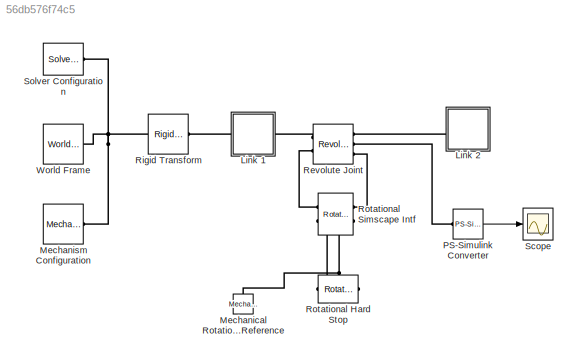
MODEL slx_56db576f74c5
KIND model
CONFIG PostLoadFcn = warning off sm:compiler:topologyAnalysis:DanglingBlock\n
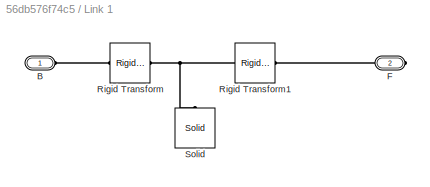
BLOCK [SubSystem] Link 1
  FunctionWithSeparateData = off
  MaskHideContents = off
  MinAlgLoopOccurrences = off
  Opaque = off
  Ports = [0, 0, 0, 0, 0, 1, 1]
  PropExecContextOutsideSubsystem = off
  RTWSystemCode = Auto
  RequestExecContextInheritance = off
BLOCK [PMIOPort] Link 1/B
  Port = 1
  Side = Left
BLOCK [PMIOPort] Link 1/F
  Port = 2
  Side = Right
BLOCK [Reference] Link 1/Rigid Transform  REF=sm_lib/Frames and
 Transforms/Rigid 
Transform
  BaseAlignAxisA = +Y
  BaseAlignAxisB = +Z
  BlockFunction = simmechanics.library.frames_transforms.rigid_transform
  ClassName = RigidTransform
  FollAlignAxisA = +X
  FollAlignAxisB = +Y
  Ports = [0, 0, 0, 0, 0, 1, 1]
  RotationAngle = 0
  RotationAngleUnits = deg
  RotationArbitraryAxis = [0 0 1]
  RotationMethod = None
  RotationStandardAxis = +X
  SourceBlock = sm_lib/Frames and\n Transforms/Rigid \nTransform
  SourceType = Rigid Transform
  TranslationCartesianOffset = [0 0 0]
  TranslationLengthUnit = m
  TranslationMethod = StandardAxis
  TranslationROffset = 0
  TranslationROffsetUnits = m
  TranslationStandardAxis = +X
  TranslationStandardOffset = 0.5
  TranslationThetaOffset = 0
  TranslationThetaOffsetUnits = deg
  TranslationZOffset = 0
  TranslationZOffsetUnits = m
BLOCK [Reference] Link 1/Rigid Transform1  REF=sm_lib/Frames and
 Transforms/Rigid 
Transform
  BaseAlignAxisA = +Y
  BaseAlignAxisB = +Z
  BlockFunction = simmechanics.library.frames_transforms.rigid_transform
  ClassName = RigidTransform
  FollAlignAxisA = +X
  FollAlignAxisB = +Y
  Ports = [0, 0, 0, 0, 0, 1, 1]
  RotationAngle = 0
  RotationAngleUnits = deg
  RotationArbitraryAxis = [0 0 1]
  RotationMethod = None
  RotationStandardAxis = +X
  SourceBlock = sm_lib/Frames and\n Transforms/Rigid \nTransform
  SourceType = Rigid Transform
  TranslationCartesianOffset = [0 0 0]
  TranslationLengthUnit = m
  TranslationMethod = StandardAxis
  TranslationROffset = 0
  TranslationROffsetUnits = m
  TranslationStandardAxis = +X
  TranslationStandardOffset = 0.5
  TranslationThetaOffset = 0
  TranslationThetaOffsetUnits = deg
  TranslationZOffset = 0
  TranslationZOffsetUnits = m
BLOCK [Reference] Link 1/Solid  REF=sm_lib/Body Elements/Solid
  BlockFunction = simmechanics.library.body_elements.solid
  BrickDimensionUnits = m
  BrickDimensions = [1 0.1 0.1]
  CenterOfMass = [0 0 0]
  CenterOfMassUnits = m
  ClassName = Solid
  CylinderLength = 1
  CylinderLengthUnits = m
  CylinderRadius = 1
  CylinderRadiusUnits = m
  Density = 1000
  DensityBased = on
  DensityUnits = kg/(m^3)
  EllipsoidRadii = [1 1 1]
  EllipsoidRadiiUnits = m
  ExtGeomFileUnits = m
  ExtrusionCrossSection = [1 1; -1 1; -1 -1; 1 -1]
  ExtrusionCrossSectionUnits = m
  ExtrusionLength = 1
  ExtrusionLengthUnits = m
  GeometryShape = Brick
  GraphicAmbientColor = [0.15 0.15 0.15 1.0]
  GraphicDiffuseColor = [0.5 0.5 0.5]
  GraphicEmissiveColor = [0.0 0.0 0.0 1.0]
  GraphicOpacity = 1.0
  GraphicShininess = 75
  GraphicSpecularColor = [0.5 0.5 0.5 1.0]
  GraphicType = FromGeometry
  GraphicVisPropType = SimpleVisualProperties
  InertiaType = CalculateFromGeometry
  MarkerShape = Sphere
  MarkerSize = 10
  MarkerSizeUnits = m
  Mass = 1
  MassUnits = kg
  MomentsOfInertia = [1 1 1]
  MomentsOfInertiaUnits = kg*m^2
  PolygonNumSides = 3
  PolygonOuterRadius = 1
  PolygonOuterRadiusUnits = m
  Ports = [0, 0, 0, 0, 0, 0, 1]
  ProductsOfInertia = [0 0 0]
  ProductsOfInertiaUnits = kg*m^2
  RectangleSize = [1 1]
  RectangleSizeUnits = m
  RevolutionAngle = 180
  RevolutionAngleUnits = deg
  RevolutionCrossSection = [1 1; 1 -1; 2 -1; 2 1]
  RevolutionCrossSectionUnits = m
  RevolutionExtent = Full
  SourceBlock = sm_lib/Body Elements/Solid
  SourceType = Solid
  SphereRadius = 1
  SphereRadiusUnits = m
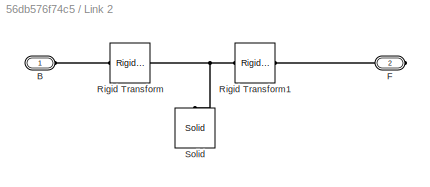
BLOCK [SubSystem] Link 2
  FunctionWithSeparateData = off
  MaskHideContents = off
  MinAlgLoopOccurrences = off
  Opaque = off
  Ports = [0, 0, 0, 0, 0, 1, 1]
  PropExecContextOutsideSubsystem = off
  RTWSystemCode = Auto
  RequestExecContextInheritance = off
BLOCK [PMIOPort] Link 2/B
  Port = 1
  Side = Left
BLOCK [PMIOPort] Link 2/F
  Port = 2
  Side = Right
BLOCK [Reference] Link 2/Rigid Transform  REF=sm_lib/Frames and
 Transforms/Rigid 
Transform
  BaseAlignAxisA = +Y
  BaseAlignAxisB = +Z
  BlockFunction = simmechanics.library.frames_transforms.rigid_transform
  ClassName = RigidTransform
  FollAlignAxisA = +X
  FollAlignAxisB = +Y
  Ports = [0, 0, 0, 0, 0, 1, 1]
  RotationAngle = 0
  RotationAngleUnits = deg
  RotationArbitraryAxis = [0 0 1]
  RotationMethod = None
  RotationStandardAxis = +X
  SourceBlock = sm_lib/Frames and\n Transforms/Rigid \nTransform
  SourceType = Rigid Transform
  TranslationCartesianOffset = [0 0 0]
  TranslationLengthUnit = m
  TranslationMethod = StandardAxis
  TranslationROffset = 0
  TranslationROffsetUnits = m
  TranslationStandardAxis = +X
  TranslationStandardOffset = 0.5
  TranslationThetaOffset = 0
  TranslationThetaOffsetUnits = deg
  TranslationZOffset = 0
  TranslationZOffsetUnits = m
BLOCK [Reference] Link 2/Rigid Transform1  REF=sm_lib/Frames and
 Transforms/Rigid 
Transform
  BaseAlignAxisA = +Y
  BaseAlignAxisB = +Z
  BlockFunction = simmechanics.library.frames_transforms.rigid_transform
  ClassName = RigidTransform
  FollAlignAxisA = +X
  FollAlignAxisB = +Y
  Ports = [0, 0, 0, 0, 0, 1, 1]
  RotationAngle = 0
  RotationAngleUnits = deg
  RotationArbitraryAxis = [0 0 1]
  RotationMethod = None
  RotationStandardAxis = +X
  SourceBlock = sm_lib/Frames and\n Transforms/Rigid \nTransform
  SourceType = Rigid Transform
  TranslationCartesianOffset = [0 0 0]
  TranslationLengthUnit = m
  TranslationMethod = StandardAxis
  TranslationROffset = 0
  TranslationROffsetUnits = m
  TranslationStandardAxis = +X
  TranslationStandardOffset = 0.5
  TranslationThetaOffset = 0
  TranslationThetaOffsetUnits = deg
  TranslationZOffset = 0
  TranslationZOffsetUnits = m
BLOCK [Reference] Link 2/Solid  REF=sm_lib/Body Elements/Solid
  BlockFunction = simmechanics.library.body_elements.solid
  BrickDimensionUnits = m
  BrickDimensions = [1 0.1 0.1]
  CenterOfMass = [0 0 0]
  CenterOfMassUnits = m
  ClassName = Solid
  CylinderLength = 1
  CylinderLengthUnits = m
  CylinderRadius = 1
  CylinderRadiusUnits = m
  Density = 1000
  DensityBased = on
  DensityUnits = kg/(m^3)
  EllipsoidRadii = [1 1 1]
  EllipsoidRadiiUnits = m
  ExtGeomFileUnits = m
  ExtrusionCrossSection = [1 1; -1 1; -1 -1; 1 -1]
  ExtrusionCrossSectionUnits = m
  ExtrusionLength = 1
  ExtrusionLengthUnits = m
  GeometryShape = Brick
  GraphicAmbientColor = [0.15 0.15 0.15 1.0]
  GraphicDiffuseColor = [0.8 0.2 0.0]
  GraphicEmissiveColor = [0.0 0.0 0.0 1.0]
  GraphicOpacity = 1.0
  GraphicShininess = 75
  GraphicSpecularColor = [0.5 0.5 0.5 1.0]
  GraphicType = FromGeometry
  GraphicVisPropType = SimpleVisualProperties
  InertiaType = CalculateFromGeometry
  MarkerShape = Sphere
  MarkerSize = 10
  MarkerSizeUnits = m
  Mass = 1
  MassUnits = kg
  MomentsOfInertia = [1 1 1]
  MomentsOfInertiaUnits = kg*m^2
  PolygonNumSides = 3
  PolygonOuterRadius = 1
  PolygonOuterRadiusUnits = m
  Ports = [0, 0, 0, 0, 0, 0, 1]
  ProductsOfInertia = [0 0 0]
  ProductsOfInertiaUnits = kg*m^2
  RectangleSize = [1 1]
  RectangleSizeUnits = m
  RevolutionAngle = 180
  RevolutionAngleUnits = deg
  RevolutionCrossSection = [1 1; 1 -1; 2 -1; 2 1]
  RevolutionCrossSectionUnits = m
  RevolutionExtent = Full
  SourceBlock = sm_lib/Body Elements/Solid
  SourceType = Solid
  SphereRadius = 1
  SphereRadiusUnits = m
BLOCK [Reference] Mechanical Rotational Reference  REF=fl_lib/Mechanical/Rotational Elements/Mechanical
Rotational Reference
  ClassName = reference
  ComponentPath = foundation.mechanical.rotational.reference
  ComponentVariantNames = reference
  ComponentVariants = foundation.mechanical.rotational.reference
  LocalVarDescs = |t
  LocalVarLogging = 0
  LocalVarNames = |t
  Ports = [0, 0, 0, 0, 0, 1]
  SchemaVersion = 1
  SourceBlock = fl_lib/Mechanical/Rotational Elements/Mechanical\nRotational Reference
  SourceFile = foundation.mechanical.rotational.reference
  SourceType = Mechanical\nRotational Reference
  t_Log = off
BLOCK [Reference] Mechanism Configuration  REF=sm_lib/Utilities/Mechanism 
Configuration
  AllowGravitySignal = off
  BlockFunction = simmechanics.library.utilities.mechanism_configuration
  ClassName = MechanismConfiguration
  GravityUnits = m/s^2
  GravityVector = [0 0 -9.81]
  LinearizationDelta = 0.001
  Ports = [0, 0, 0, 0, 0, 0, 1]
  SourceBlock = sm_lib/Utilities/Mechanism \nConfiguration
  SourceType = Mechanism Configuration
BLOCK [Reference] PS-Simulink Converter  REF=nesl_utility/PS-Simulink
Converter
  AffineConversion = off
  Frequencies = []
  LeftPortType = input
  PhysicalDomain = network_engine_domain
  Ports = [0, 1, 0, 0, 0, 1]
  PseudoPeriodic = off
  RightPortType = output
  SourceBlock = nesl_utility/PS-Simulink\nConverter
  SourceType = PS-Simulink\nConverter
  SubClassName = ps_output
  Unit = deg
BLOCK [Reference] Revolute Joint  REF=sm_lib/Joints/Revolute Joint
  ActuationMode = TorqueForceActuation
  BlockFunction = simmechanics.library.joints.revolute_joint
  ClassName = RevoluteJoint
  ConstraintWrenchDir = FollowerOnBase
  ConstraintWrenchFrame = BaseFrame
  DampingCoefficient = 0
  DampingCoefficientUnits = N*m/(deg/s)
  EquilibriumPosition = 0
  EquilibriumPositionUnits = deg
  Ports = [0, 0, 0, 0, 0, 2, 3]
  PositionTargetPriority = High
  PositionTargetSpecify = off
  PositionTargetValue = 0
  PositionTargetValueUnits = deg
  SenseAcceleration = off
  SenseConstraintForceX = off
  SenseConstraintForceY = off
  SenseConstraintForceZ = off
  SenseConstraintTorqueX = off
  SenseConstraintTorqueY = off
  SenseConstraintTorqueZ = off
  SensePosition = on
  SenseTorqueForce = off
  SenseVelocity = on
  SourceBlock = sm_lib/Joints/Revolute Joint
  SourceType = Revolute Joint
  SpringStiffness = 0
  SpringStiffnessUnits = N*m/deg
  VelocityTargetPriority = High
  VelocityTargetSpecify = off
  VelocityTargetValue = 0
  VelocityTargetValueUnits = deg/s
BLOCK [Reference] Rigid Transform  REF=sm_lib/Frames and
 Transforms/Rigid 
Transform
  BaseAlignAxisA = +Y
  BaseAlignAxisB = +Z
  BlockFunction = simmechanics.library.frames_transforms.rigid_transform
  ClassName = RigidTransform
  FollAlignAxisA = +X
  FollAlignAxisB = +Y
  Ports = [0, 0, 0, 0, 0, 1, 1]
  RotationAngle = 90
  RotationAngleUnits = deg
  RotationArbitraryAxis = [0 0 1]
  RotationMethod = StandardAxis
  RotationStandardAxis = +X
  SourceBlock = sm_lib/Frames and\n Transforms/Rigid \nTransform
  SourceType = Rigid Transform
  TranslationCartesianOffset = [0 0 0]
  TranslationLengthUnit = m
  TranslationMethod = StandardAxis
  TranslationROffset = 0
  TranslationROffsetUnits = m
  TranslationStandardAxis = +X
  TranslationStandardOffset = 0.5
  TranslationThetaOffset = 0
  TranslationThetaOffsetUnits = deg
  TranslationZOffset = 0
  TranslationZOffsetUnits = m
BLOCK [Reference] Rotational Hard Stop  REF=fl_lib/Mechanical/Rotational Elements/Rotational Hard Stop
  ClassName = hardstop
  ComponentPath = foundation.mechanical.rotational.hardstop
  ComponentVariantNames = hardstop
  ComponentVariants = foundation.mechanical.rotational.hardstop
  D_low = 1e2
  D_low_unit = N*m/(rad/s)
  D_up = 1e2
  D_up_unit = N*m/(rad/s)
  LocalVarDescs = |t|w|phi
  LocalVarLogging = [0 0 0]
  LocalVarNames = |t|w|phi
  Ports = [0, 0, 0, 0, 0, 1, 1]
  SchemaVersion = 1
  SourceBlock = fl_lib/Mechanical/Rotational Elements/Rotational Hard Stop
  SourceFile = foundation.mechanical.rotational.hardstop
  SourceType = Rotational Hard Stop
  initial_angle = 0
  initial_angle_unit = rad
  lower_bnd = -45
  lower_bnd_unit = deg
  phi_Log = off
  stiff_low = 1e6
  stiff_low_unit = N*m/rad
  stiff_up = 1e6
  stiff_up_unit = N*m/rad
  t_Log = off
  upper_bnd = 45
  upper_bnd_unit = deg
  w_Log = off
BLOCK [Reference] Rotational Simscape Intf  REF=MS2G_SS_Intf_Lib/Rotational
Simscape Intf
  Ports = [0, 0, 0, 0, 0, 2, 2]
  SourceBlock = MS2G_SS_Intf_Lib/Rotational\nSimscape Intf
  SourceType = SubSystem
BLOCK [Scope] Scope
  DataFormat = StructureWithTime
  Floating = off
  NumInputPorts = 1
  Ports = [1]
  SampleTime = 0
  ShowLegends = off
  TimeRange = 10
  YMax = 0
  YMin = -50
BLOCK [Reference] Solver Configuration  REF=nesl_utility/Solver
Configuration
  Accelerate = off
  DelaysMemoryBudget = 1024
  DoDC = off
  DoFixedCost = off
  EnableSwitchedLinearOptims = on
  FrequencyDomain = off
  Harmonics = []
  LeftPortType = input
  LinearAlgebra = Sparse
  LocalSolverChoice = NE_BACKWARD_EULER_ADVANCER
  LocalSolverSampleTime = .001
  MaxModeIter = 2
  MaxNonlinIter = 3
  PhysicalDomain = network_engine_domain
  Ports = [0, 0, 0, 0, 0, 0, 1]
  Profile = off
  ResidualTolerance = 1e-9
  RightPortType = generic
  SimulateNoise = off
  SourceBlock = nesl_utility/Solver\nConfiguration
  SourceType = Solver\nConfiguration
  SubClassName = solver
  Tones = []
  UseCCode = off
  UseLocalSampling = off
  UseLocalSolver = off
  UseNewInitialization = off
BLOCK [Reference] World Frame  REF=sm_lib/Frames and
 Transforms/World Frame
  BlockFunction = simmechanics.library.frames_transforms.world_frame
  ClassName = WorldFrame
  Ports = [0, 0, 0, 0, 0, 0, 1]
  SourceBlock = sm_lib/Frames and\n Transforms/World Frame
  SourceType = World Frame
LINE PS-Simulink Converter:1 -> Scope:1
PLINE Link 1/B:RConn1 -- Link 1/Rigid Transform:LConn1
PLINE Link 1/F:RConn1 -- Link 1/Rigid Transform1:RConn1
PNET net1: Link 1/Rigid Transform1:LConn1 -- Link 1/Rigid Transform:RConn1 -- Link 1/Solid:RConn1
PLINE Link 1:LConn1 -- Rigid Transform:RConn1
PLINE Link 1:RConn1 -- Revolute Joint:LConn1
PLINE Link 2/B:RConn1 -- Link 2/Rigid Transform:LConn1
PLINE Link 2/F:RConn1 -- Link 2/Rigid Transform1:RConn1
PNET net2: Link 2/Rigid Transform1:LConn1 -- Link 2/Rigid Transform:RConn1 -- Link 2/Solid:RConn1
PLINE Link 2:LConn1 -- Revolute Joint:RConn1
PNET net3: Mechanical Rotational Reference:LConn1 -- Rotational Hard Stop:RConn1 -- Rotational Simscape Intf:RConn2
PNET net4: Mechanism Configuration:RConn1 -- Rigid Transform:LConn1 -- Solver Configuration:RConn1 -- World Frame:RConn1
PLINE PS-Simulink Converter:LConn1 -- Revolute Joint:RConn2
PLINE Revolute Joint:LConn2 -- Rotational Simscape Intf:RConn1
PLINE Revolute Joint:RConn3 -- Rotational Simscape Intf:LConn1
PLINE Rotational Hard Stop:LConn1 -- Rotational Simscape Intf:LConn2
note: PNET lines group multi-terminal physical nets as a canonical sorted terminal list (undirected conserving connections); 2-terminal nets keep the pairwise PLINE form
